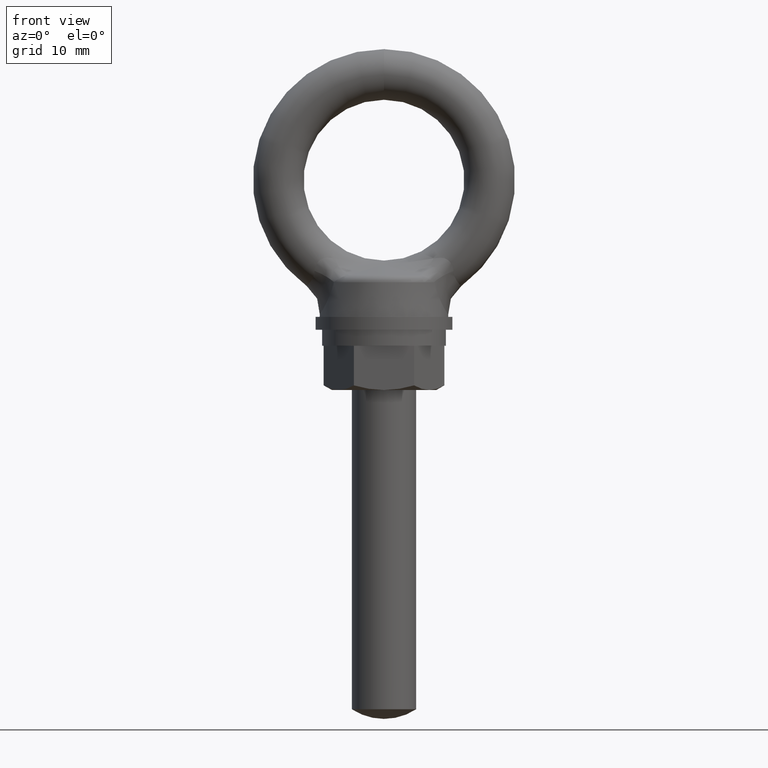
[diagram: clean part render]
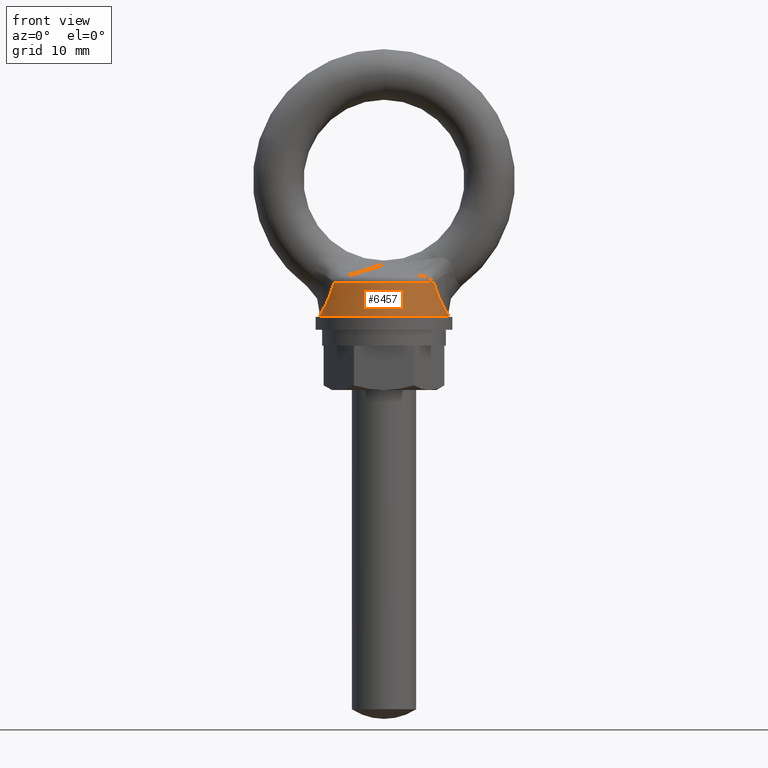
[diagram: same view with one face highlighted and labeled with its STEP entity id]
A machine part, front view. The second image highlights one B-rep face of the part: STEP entity #6457.
In plain terms, the highlighted conical surface has half-angle 5 deg.
Its self-contained STEP definition (entity closure, byte-faithful):
#538 = CARTESIAN_POINT ( 'NONE',  ( 6.210392761138069600, -4.421908272886815500, -12.69996661424272100 ) ) ;
#5479 = B_SPLINE_CURVE_WITH_KNOTS ( 'NONE', 3,
 ( #5776, #5775, #5774, #5773, #5772, #5771, #5770, #5769, #5768, #5767, #5766, #5765, #5764, #5763, #5762, #5761 ),
 .UNSPECIFIED., .F., .F.,
 ( 4, 2, 2, 2, 2, 2, 2, 4 ),
 ( 0.006793258513159759400, 0.007643701321121404800, 0.008494144129083050200, 0.009344586937044695500, 0.01019502974500634100, 0.01104547255296798600, 0.01189591536092963000, 0.01359680097685291700 ),
 .UNSPECIFIED. ) ;
#5604 = DIRECTION ( 'NONE',  ( -1.000000000000000000, 0.0000000000000000000, 0.0000000000000000000 ) ) ;
#5605 = DIRECTION ( 'NONE',  ( 0.0000000000000000000, 0.0000000000000000000, -1.000000000000000000 ) ) ;
#5606 = CARTESIAN_POINT ( 'NONE',  ( 0.0000000000000000000, 0.0000000000000000000, -17.00000000000000000 ) ) ;
#5607 = AXIS2_PLACEMENT_3D ( 'NONE', #5606, #5605, #5604 ) ;
#5619 = CONICAL_SURFACE ( 'NONE', #5607, 8.000000000000000000, 0.08726664082111058900 ) ;
#5620 = FACE_OUTER_BOUND ( 'NONE', #6458, .T. ) ;
#5622 = CARTESIAN_POINT ( 'NONE',  ( -7.978061295766676300, -2.547674772147074800E-011, -16.74923997788642900 ) ) ;
#5623 = CARTESIAN_POINT ( 'NONE',  ( -7.978061295765623800, -0.2833191255498201900, -16.74923997788471700 ) ) ;
#5624 = CARTESIAN_POINT ( 'NONE',  ( -7.959795342409210900, -0.5718046275041914800, -16.71977356463808200 ) ) ;
#5625 = CARTESIAN_POINT ( 'NONE',  ( -7.890987243053435100, -1.122473905029034400, -16.60671778006374700 ) ) ;
#5626 = CARTESIAN_POINT ( 'NONE',  ( -7.840879418701055300, -1.387375438696458300, -16.52382155039643400 ) ) ;
#5627 = CARTESIAN_POINT ( 'NONE',  ( -7.713738907019217300, -1.897586032504910500, -16.30697918787685900 ) ) ;
#5629 = CARTESIAN_POINT ( 'NONE',  ( -7.637741625136117200, -2.137843358775209300, -16.17464781627291600 ) ) ;
#5630 = CARTESIAN_POINT ( 'NONE',  ( -7.472070239655748100, -2.580174103661142300, -15.87401695488658700 ) ) ;
#5631 = CARTESIAN_POINT ( 'NONE',  ( -7.381771383096067400, -2.784521537567979700, -15.70467943273328300 ) ) ;
#5632 = CARTESIAN_POINT ( 'NONE',  ( -7.191972160612237100, -3.162662739913071800, -15.32910516627604900 ) ) ;
#5633 = CARTESIAN_POINT ( 'NONE',  ( -7.093108766145618900, -3.334768518180765400, -15.12382258030863200 ) ) ;
#5634 = CARTESIAN_POINT ( 'NONE',  ( -6.899242522336977300, -3.639404277857394300, -14.69389256611365500 ) ) ;
#5635 = CARTESIAN_POINT ( 'NONE',  ( -6.803290993242570500, -3.773784452342339600, -14.46741059988001900 ) ) ;
#5636 = CARTESIAN_POINT ( 'NONE',  ( -6.617505508660244100, -4.011256946778234000, -13.99249650156616900 ) ) ;
#5637 = CARTESIAN_POINT ( 'NONE',  ( -6.527258717941119700, -4.114688659261674700, -13.74266899169101900 ) ) ;
#5638 = CARTESIAN_POINT ( 'NONE',  ( -6.359387483970397900, -4.290113183179031800, -13.23087931092761400 ) ) ;
#5639 = CARTESIAN_POINT ( 'NONE',  ( -6.281497496774276700, -4.362544022843335000, -12.96846117206049700 ) ) ;
#5640 = CARTESIAN_POINT ( 'NONE',  ( -6.210392761138069600, -4.421908272886815500, -12.69996661424272100 ) ) ;
#5659 = B_SPLINE_CURVE_WITH_KNOTS ( 'NONE', 3,
 ( #5640, #5639, #5638, #5637, #5636, #5635, #5634, #5633, #5632, #5631, #5630, #5629, #5627, #5626, #5625, #5624, #5623, #5622 ),
 .UNSPECIFIED., .F., .F.,
 ( 4, 2, 2, 2, 2, 2, 2, 2, 4 ),
 ( 0.0000000000000000000, 0.0008491573141449697100, 0.001698314628289939400, 0.002547471942434909100, 0.003396629256579878800, 0.004245786570724849000, 0.005094943884869818300, 0.005944101199014787500, 0.006793258513159757700 ),
 .UNSPECIFIED. ) ;
#5760 = CARTESIAN_POINT ( 'NONE',  ( -6.210392761138069600, -4.421908272886815500, -12.69996661424272100 ) ) ;
#5761 = CARTESIAN_POINT ( 'NONE',  ( 6.210392761138069600, -4.421908272886815500, -12.69996661424272100 ) ) ;
#5762 = CARTESIAN_POINT ( 'NONE',  ( 6.352774983116773900, -4.303035545892444500, -13.23760804401850100 ) ) ;
#5763 = CARTESIAN_POINT ( 'NONE',  ( 6.521835315794028500, -4.133273454851131800, -13.74751196352282900 ) ) ;
#5764 = CARTESIAN_POINT ( 'NONE',  ( 6.802326438138771400, -3.775150612293931600, -14.46515609343281400 ) ) ;
#5765 = CARTESIAN_POINT ( 'NONE',  ( 6.900199435006724600, -3.638051344731992200, -14.69613900649317300 ) ) ;
#5766 = CARTESIAN_POINT ( 'NONE',  ( 7.094806094114285400, -3.331948585593760300, -15.12746064357346600 ) ) ;
#5767 = CARTESIAN_POINT ( 'NONE',  ( 7.192233262825612700, -3.162189189056240600, -15.32963966651834300 ) ) ;
#5768 = CARTESIAN_POINT ( 'NONE',  ( 7.382050305574232100, -2.783919052358373200, -15.70521348130625800 ) ) ;
#5769 = CARTESIAN_POINT ( 'NONE',  ( 7.474527990394009600, -2.574390398047316600, -15.87859289991847700 ) ) ;
#5770 = CARTESIAN_POINT ( 'NONE',  ( 7.640562853530668400, -2.129507459972070900, -16.17964746929633800 ) ) ;
#5771 = CARTESIAN_POINT ( 'NONE',  ( 7.715214405743791900, -1.892333759044080700, -16.30952380188658400 ) ) ;
#5772 = CARTESIAN_POINT ( 'NONE',  ( 7.841414596894221500, -1.384548204637224200, -16.52470576121613600 ) ) ;
#5773 = CARTESIAN_POINT ( 'NONE',  ( 7.892762876651934400, -1.111512915870893400, -16.60965174227722900 ) ) ;
#5774 = CARTESIAN_POINT ( 'NONE',  ( 7.960509930743504500, -0.5627155035198899700, -16.72093056700588300 ) ) ;
#5775 = CARTESIAN_POINT ( 'NONE',  ( 7.978061295767733300, -0.2837480271616552600, -16.74923997788813800 ) ) ;
#5776 = CARTESIAN_POINT ( 'NONE',  ( 7.978061295766676300, 2.547687685380514800E-011, -16.74923997788642900 ) ) ;
#5777 = DIRECTION ( 'NONE',  ( 1.000000000000000000, 0.0000000000000000000, 0.0000000000000000000 ) ) ;
#5778 = DIRECTION ( 'NONE',  ( 0.0000000000000000000, 0.0000000000000000000, -1.000000000000000000 ) ) ;
#5779 = CARTESIAN_POINT ( 'NONE',  ( 0.0000000000000000000, 0.0000000000000000000, -12.69996661424272100 ) ) ;
#5780 = AXIS2_PLACEMENT_3D ( 'NONE', #5779, #5778, #5777 ) ;
#5781 = CIRCLE ( 'NONE', #5780, 7.623795053739380400 ) ;
#6023 = VERTEX_POINT ( 'NONE', #7139 ) ;
#6025 = EDGE_CURVE ( 'NONE', #6023, #6026, #7135, .T. ) ;
#6026 = VERTEX_POINT ( 'NONE', #7131 ) ;
#6029 = VERTEX_POINT ( 'NONE', #7108 ) ;
#6031 = EDGE_CURVE ( 'NONE', #6032, #6029, #7107, .T. ) ;
#6032 = VERTEX_POINT ( 'NONE', #7103 ) ;
#6044 = EDGE_CURVE ( 'NONE', #6026, #6029, #7071, .T. ) ;
#6244 = ORIENTED_EDGE ( 'NONE', *, *, #6025, .F. ) ;
#6245 = ORIENTED_EDGE ( 'NONE', *, *, #6434, .T. ) ;
#6246 = VERTEX_POINT ( 'NONE', #538 ) ;
#6434 = EDGE_CURVE ( 'NONE', #6023, #6246, #5479, .T. ) ;
#6435 = ORIENTED_EDGE ( 'NONE', *, *, #6436, .T. ) ;
#6436 = EDGE_CURVE ( 'NONE', #6246, #6437, #5781, .T. ) ;
#6437 = VERTEX_POINT ( 'NONE', #5760 ) ;
#6438 = ORIENTED_EDGE ( 'NONE', *, *, #6447, .T. ) ;
#6447 = EDGE_CURVE ( 'NONE', #6437, #6032, #5659, .T. ) ;
#6448 = ORIENTED_EDGE ( 'NONE', *, *, #6031, .T. ) ;
#6449 = ORIENTED_EDGE ( 'NONE', *, *, #6044, .F. ) ;
#6457 = ADVANCED_FACE ( 'NONE', ( #5620 ), #5619, .T. ) ;
#6458 = EDGE_LOOP ( 'NONE', ( #6244, #6245, #6435, #6438, #6448, #6449 ) ) ;
#7067 = DIRECTION ( 'NONE',  ( -1.000000000000000000, 0.0000000000000000000, 0.0000000000000000000 ) ) ;
#7068 = DIRECTION ( 'NONE',  ( 0.0000000000000000000, 0.0000000000000000000, -1.000000000000000000 ) ) ;
#7069 = CARTESIAN_POINT ( 'NONE',  ( 0.0000000000000000000, 0.0000000000000000000, -17.00000000000000000 ) ) ;
#7070 = AXIS2_PLACEMENT_3D ( 'NONE', #7069, #7068, #7067 ) ;
#7071 = CIRCLE ( 'NONE', #7070, 8.000000000000000000 ) ;
#7103 = CARTESIAN_POINT ( 'NONE',  ( -7.978061295766676300, -2.547674772147074800E-011, -16.74923997788642900 ) ) ;
#7104 = DIRECTION ( 'NONE',  ( -0.08715592029086469100, 0.0000000000000000000, -0.9961946825587118000 ) ) ;
#7105 = VECTOR ( 'NONE', #7104, 1000.000000000000000 ) ;
#7106 = CARTESIAN_POINT ( 'NONE',  ( -8.000000000000000000, 0.0000000000000000000, -17.00000000000000000 ) ) ;
#7107 = LINE ( 'NONE', #7106, #7105 ) ;
#7108 = CARTESIAN_POINT ( 'NONE',  ( -8.000000000000000000, 0.0000000000000000000, -17.00000000000000000 ) ) ;
#7131 = CARTESIAN_POINT ( 'NONE',  ( 8.000000000000000000, 9.796850830579018100E-016, -17.00000000000000000 ) ) ;
#7132 = DIRECTION ( 'NONE',  ( 0.08715592029086469100, 1.067316937614295400E-017, -0.9961946825587118000 ) ) ;
#7133 = VECTOR ( 'NONE', #7132, 1000.000000000000000 ) ;
#7134 = CARTESIAN_POINT ( 'NONE',  ( 8.000000000000000000, 9.796850830579018100E-016, -17.00000000000000000 ) ) ;
#7135 = LINE ( 'NONE', #7134, #7133 ) ;
#7139 = CARTESIAN_POINT ( 'NONE',  ( 7.978061295766676300, 2.547687685380514800E-011, -16.74923997788642900 ) ) ;